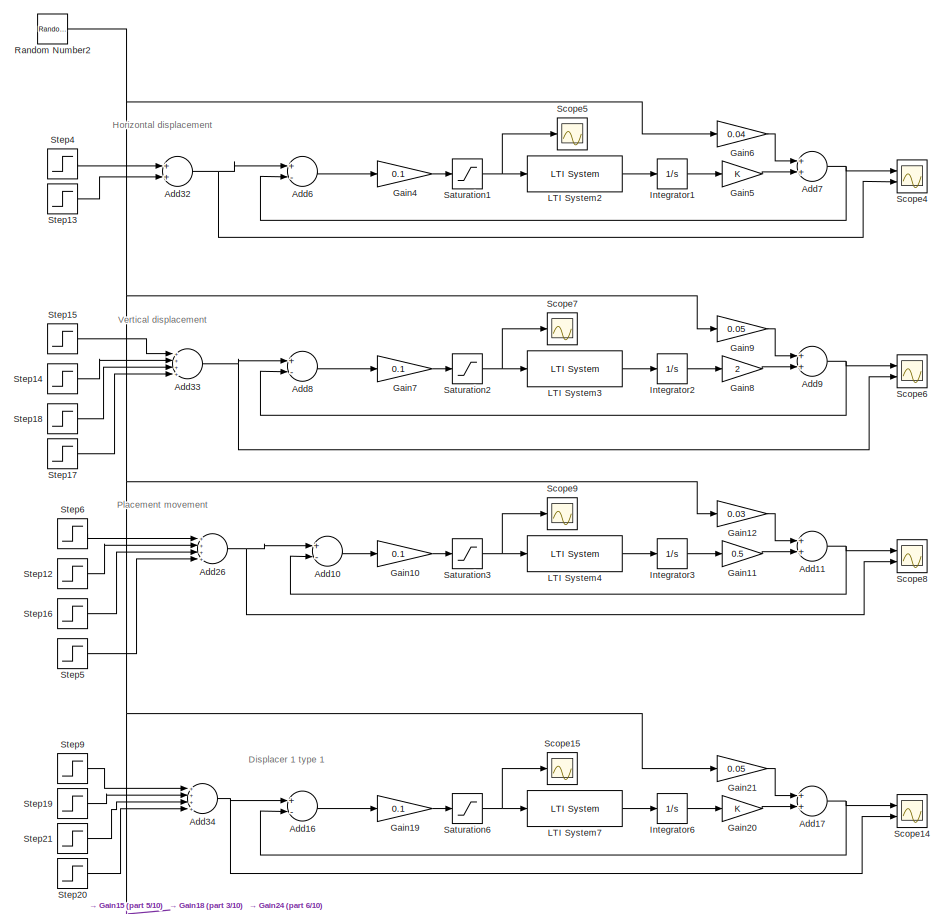
[diagram: root canvas - part 1/10, top left region]
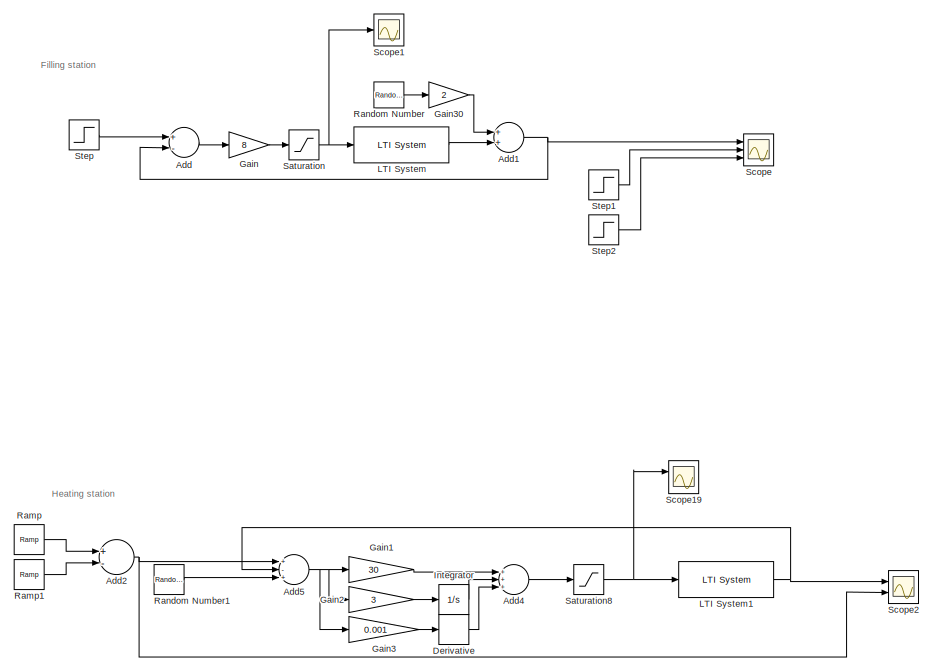
[diagram: root canvas - part 2/10, top center region]
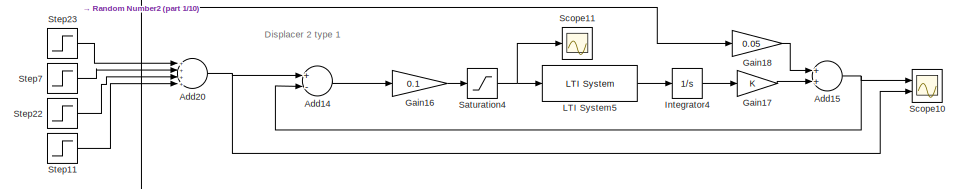
[diagram: root canvas - part 3/10, middle left region]
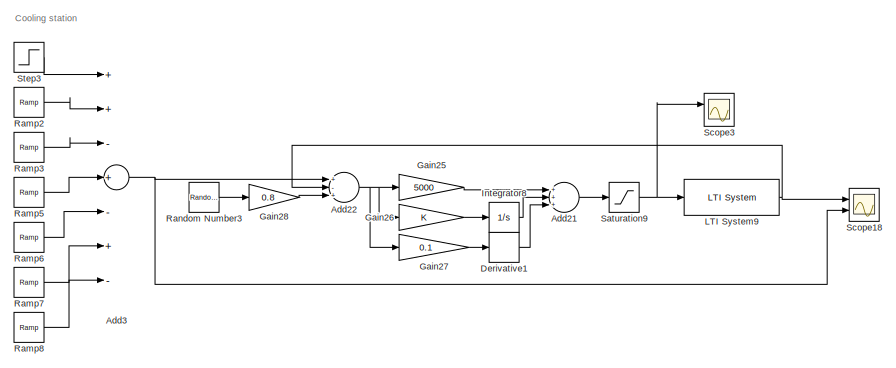
[diagram: root canvas - part 4/10, central region]
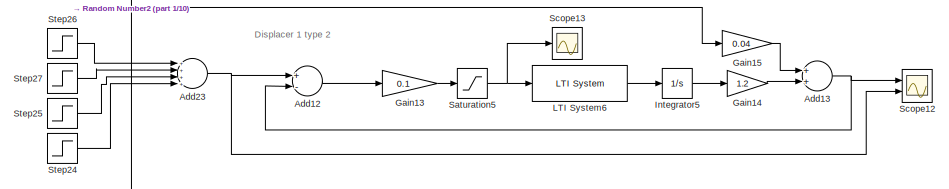
[diagram: root canvas - part 5/10, middle left region]
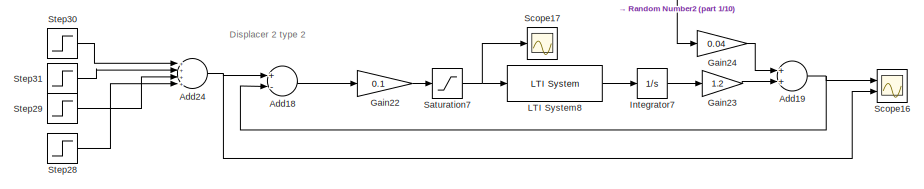
[diagram: root canvas - part 6/10, middle left region]
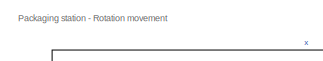
[diagram: root canvas - part 7/10, bottom center region]
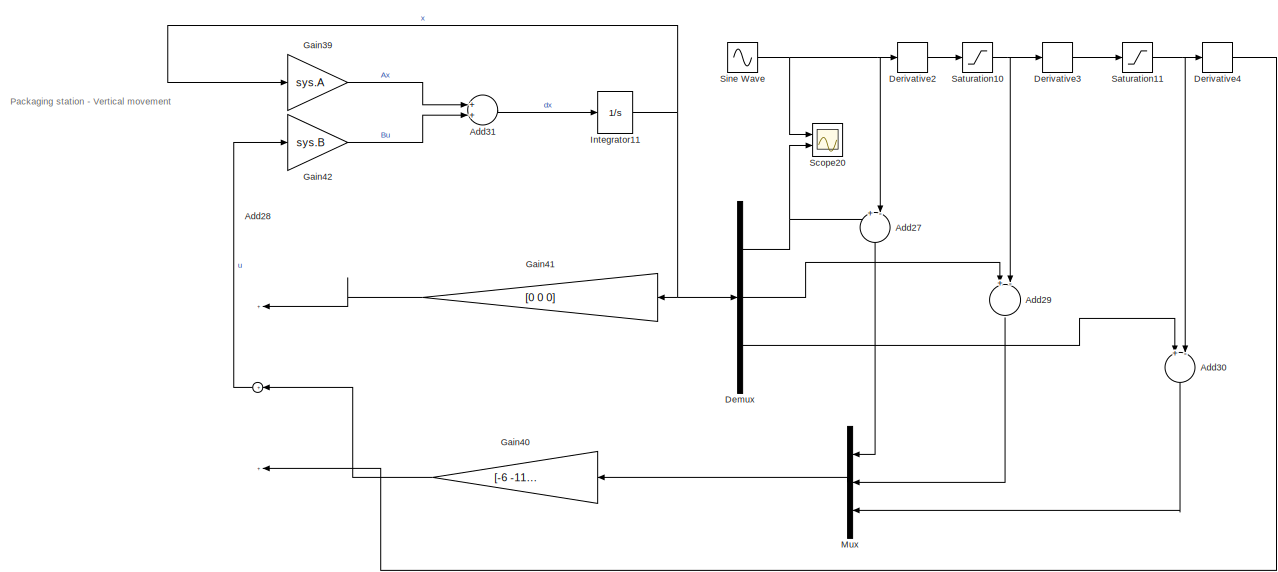
[diagram: root canvas - part 8/10, bottom left region]
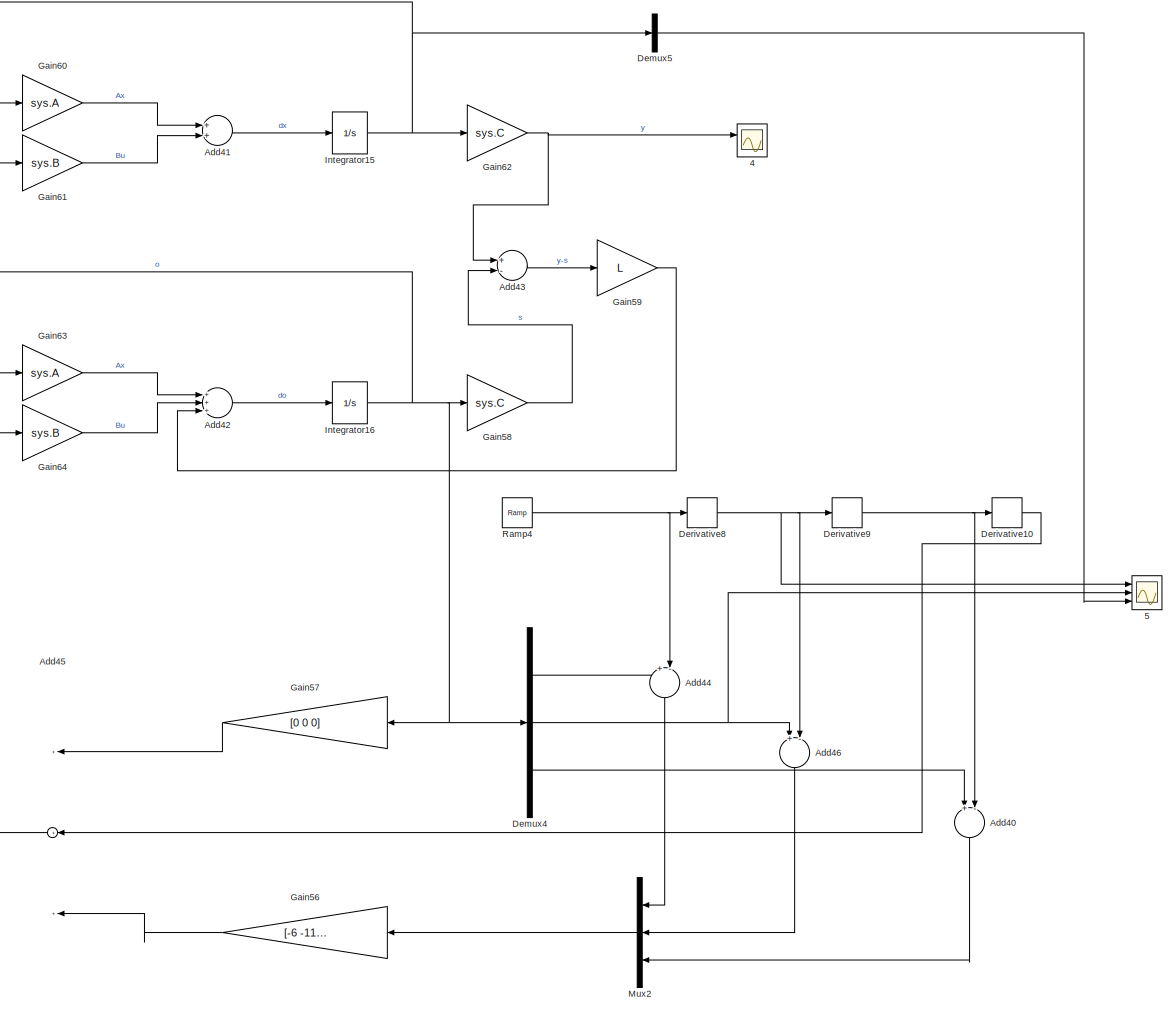
[diagram: root canvas - part 9/10, bottom right region]
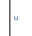
[diagram: root canvas - part 10/10, bottom center region]
MODEL slx_2edadf2fe691
KIND model
CONFIG AbsTol = auto
CONFIG EnableMultiTasking = off
CONFIG FixedStep = 0.001
CONFIG MaxStep = 0.001
CONFIG MinStep = auto
CONFIG RelTol = 1e-3
CONFIG SampleTimeConstraint = Unconstrained
CONFIG Solver = ode1
CONFIG SolverName = ode1
CONFIG StartTime = 0.0
CONFIG StopTime = 200
BLOCK [Scope]  4
  Commented = on
  Floating = off
  NumInputPorts = 2
  Ports = [2]
  ScopeSpecificationString = Simulink.scopes.TimeScopeBlockCfg('CurrentConfiguration', extmgr.ConfigurationSet(extmgr.Configuration('Core','General UI',true),extmgr.Configuration('Core','Source UI',true),extmgr.Configuration('Sources','WiredSimulink',true,'DataLoggingVariableName','ScopeData8'),extmgr.Configuration('Visuals','Time Domain',true,'SerializedDisplays',{struct('MinYLimReal','-36.63117','MaxYLimReal','149.8385','YL...<+1409ch>
BLOCK [Scope]  5
  Commented = on
  Floating = off
  NumInputPorts = 3
  Ports = [3]
  ScopeSpecificationString = Simulink.scopes.TimeScopeBlockCfg('CurrentConfiguration', extmgr.ConfigurationSet(extmgr.Configuration('Core','General UI',true),extmgr.Configuration('Core','Source UI',true),extmgr.Configuration('Sources','WiredSimulink',true,'DataLoggingVariableName','ScopeData9'),extmgr.Configuration('Visuals','Time Domain',true,'SerializedDisplays',{struct('MinYLimReal','-8.98815','MaxYLimReal','80.89339','YLa...<+1470ch>
BLOCK [Sum] Add
  Commented = on
  InputSameDT = off
  Inputs = +-
  OutDataTypeStr = Inherit: Inherit via internal rule
  Ports = [2, 1]
  SaturateOnIntegerOverflow = off
BLOCK [Sum] Add1
  Commented = on
  InputSameDT = off
  OutDataTypeStr = Inherit: Inherit via internal rule
  Ports = [2, 1]
  SaturateOnIntegerOverflow = off
BLOCK [Sum] Add10
  Commented = on
  InputSameDT = off
  Inputs = +-
  OutDataTypeStr = Inherit: Inherit via internal rule
  Ports = [2, 1]
  SaturateOnIntegerOverflow = off
BLOCK [Sum] Add11
  Commented = on
  InputSameDT = off
  OutDataTypeStr = Inherit: Inherit via internal rule
  Ports = [2, 1]
  SaturateOnIntegerOverflow = off
BLOCK [Sum] Add12
  Commented = on
  InputSameDT = off
  Inputs = +-
  OutDataTypeStr = Inherit: Inherit via internal rule
  Ports = [2, 1]
  SaturateOnIntegerOverflow = off
BLOCK [Sum] Add13
  Commented = on
  InputSameDT = off
  OutDataTypeStr = Inherit: Inherit via internal rule
  Ports = [2, 1]
  SaturateOnIntegerOverflow = off
BLOCK [Sum] Add14
  Commented = on
  InputSameDT = off
  Inputs = +-
  OutDataTypeStr = Inherit: Inherit via internal rule
  Ports = [2, 1]
  SaturateOnIntegerOverflow = off
BLOCK [Sum] Add15
  Commented = on
  InputSameDT = off
  OutDataTypeStr = Inherit: Inherit via internal rule
  Ports = [2, 1]
  SaturateOnIntegerOverflow = off
BLOCK [Sum] Add16
  Commented = on
  InputSameDT = off
  Inputs = +-
  OutDataTypeStr = Inherit: Inherit via internal rule
  Ports = [2, 1]
  SaturateOnIntegerOverflow = off
BLOCK [Sum] Add17
  Commented = on
  InputSameDT = off
  OutDataTypeStr = Inherit: Inherit via internal rule
  Ports = [2, 1]
  SaturateOnIntegerOverflow = off
BLOCK [Sum] Add18
  Commented = on
  InputSameDT = off
  Inputs = +-
  OutDataTypeStr = Inherit: Inherit via internal rule
  Ports = [2, 1]
  SaturateOnIntegerOverflow = off
BLOCK [Sum] Add19
  Commented = on
  InputSameDT = off
  OutDataTypeStr = Inherit: Inherit via internal rule
  Ports = [2, 1]
  SaturateOnIntegerOverflow = off
BLOCK [Sum] Add2
  Commented = on
  InputSameDT = off
  Inputs = +-
  OutDataTypeStr = Inherit: Inherit via internal rule
  Ports = [2, 1]
  SaturateOnIntegerOverflow = off
BLOCK [Sum] Add20
  Commented = on
  InputSameDT = off
  Inputs = ++++
  OutDataTypeStr = Inherit: Inherit via internal rule
  Ports = [4, 1]
  SaturateOnIntegerOverflow = off
BLOCK [Sum] Add21
  Commented = on
  InputSameDT = off
  Inputs = +++
  OutDataTypeStr = Inherit: Inherit via internal rule
  Ports = [3, 1]
  SaturateOnIntegerOverflow = off
BLOCK [Sum] Add22
  Commented = on
  InputSameDT = off
  Inputs = +-+
  OutDataTypeStr = Inherit: Inherit via internal rule
  Ports = [3, 1]
  SaturateOnIntegerOverflow = off
BLOCK [Sum] Add23
  Commented = on
  InputSameDT = off
  Inputs = ++++
  OutDataTypeStr = Inherit: Inherit via internal rule
  Ports = [4, 1]
  SaturateOnIntegerOverflow = off
BLOCK [Sum] Add24
  Commented = on
  InputSameDT = off
  Inputs = ++++
  OutDataTypeStr = Inherit: Inherit via internal rule
  Ports = [4, 1]
  SaturateOnIntegerOverflow = off
BLOCK [Sum] Add26
  Commented = on
  InputSameDT = off
  Inputs = ++++
  OutDataTypeStr = Inherit: Inherit via internal rule
  Ports = [4, 1]
  SaturateOnIntegerOverflow = off
BLOCK [Sum] Add27
  Commented = on
  InputSameDT = off
  Inputs = +-
  OutDataTypeStr = Inherit: Inherit via internal rule
  Ports = [2, 1]
  SaturateOnIntegerOverflow = off
BLOCK [Sum] Add28
  Commented = on
  InputSameDT = off
  Inputs = +++
  OutDataTypeStr = Inherit: Inherit via internal rule
  Ports = [3, 1]
  SaturateOnIntegerOverflow = off
BLOCK [Sum] Add29
  Commented = on
  InputSameDT = off
  Inputs = +-
  OutDataTypeStr = Inherit: Inherit via internal rule
  Ports = [2, 1]
  SaturateOnIntegerOverflow = off
BLOCK [Sum] Add3
  Commented = on
  InputSameDT = off
  Inputs = ++-+-+-
  OutDataTypeStr = Inherit: Inherit via internal rule
  Ports = [7, 1]
  SaturateOnIntegerOverflow = off
BLOCK [Sum] Add30
  Commented = on
  InputSameDT = off
  Inputs = +-
  OutDataTypeStr = Inherit: Inherit via internal rule
  Ports = [2, 1]
  SaturateOnIntegerOverflow = off
BLOCK [Sum] Add31
  Commented = on
  InputSameDT = off
  OutDataTypeStr = Inherit: Inherit via internal rule
  Ports = [2, 1]
  SaturateOnIntegerOverflow = off
BLOCK [Sum] Add32
  Commented = on
  InputSameDT = off
  OutDataTypeStr = Inherit: Inherit via internal rule
  Ports = [2, 1]
  SaturateOnIntegerOverflow = off
BLOCK [Sum] Add33
  Commented = on
  InputSameDT = off
  Inputs = ++++
  OutDataTypeStr = Inherit: Inherit via internal rule
  Ports = [4, 1]
  SaturateOnIntegerOverflow = off
BLOCK [Sum] Add34
  Commented = on
  InputSameDT = off
  Inputs = ++++
  OutDataTypeStr = Inherit: Inherit via internal rule
  Ports = [4, 1]
  SaturateOnIntegerOverflow = off
BLOCK [Sum] Add4
  Commented = on
  InputSameDT = off
  Inputs = +++
  OutDataTypeStr = Inherit: Inherit via internal rule
  Ports = [3, 1]
  SaturateOnIntegerOverflow = off
BLOCK [Sum] Add40
  Commented = on
  InputSameDT = off
  Inputs = +-
  OutDataTypeStr = Inherit: Inherit via internal rule
  Ports = [2, 1]
  SaturateOnIntegerOverflow = off
BLOCK [Sum] Add41
  Commented = on
  InputSameDT = off
  OutDataTypeStr = Inherit: Inherit via internal rule
  Ports = [2, 1]
  SaturateOnIntegerOverflow = off
BLOCK [Sum] Add42
  Commented = on
  InputSameDT = off
  Inputs = +++
  OutDataTypeStr = Inherit: Inherit via internal rule
  Ports = [3, 1]
  SaturateOnIntegerOverflow = off
BLOCK [Sum] Add43
  Commented = on
  InputSameDT = off
  Inputs = +-
  OutDataTypeStr = Inherit: Inherit via internal rule
  Ports = [2, 1]
  SaturateOnIntegerOverflow = off
BLOCK [Sum] Add44
  Commented = on
  InputSameDT = off
  Inputs = +-
  OutDataTypeStr = Inherit: Inherit via internal rule
  Ports = [2, 1]
  SaturateOnIntegerOverflow = off
BLOCK [Sum] Add45
  Commented = on
  InputSameDT = off
  Inputs = +++
  OutDataTypeStr = Inherit: Inherit via internal rule
  Ports = [3, 1]
  SaturateOnIntegerOverflow = off
BLOCK [Sum] Add46
  Commented = on
  InputSameDT = off
  Inputs = +-
  OutDataTypeStr = Inherit: Inherit via internal rule
  Ports = [2, 1]
  SaturateOnIntegerOverflow = off
BLOCK [Sum] Add5
  Commented = on
  InputSameDT = off
  Inputs = +-+
  OutDataTypeStr = Inherit: Inherit via internal rule
  Ports = [3, 1]
  SaturateOnIntegerOverflow = off
BLOCK [Sum] Add6
  Commented = on
  InputSameDT = off
  Inputs = +-
  OutDataTypeStr = Inherit: Inherit via internal rule
  Ports = [2, 1]
  SaturateOnIntegerOverflow = off
BLOCK [Sum] Add7
  Commented = on
  InputSameDT = off
  OutDataTypeStr = Inherit: Inherit via internal rule
  Ports = [2, 1]
  SaturateOnIntegerOverflow = off
BLOCK [Sum] Add8
  Commented = on
  InputSameDT = off
  Inputs = +-
  OutDataTypeStr = Inherit: Inherit via internal rule
  Ports = [2, 1]
  SaturateOnIntegerOverflow = off
BLOCK [Sum] Add9
  Commented = on
  InputSameDT = off
  OutDataTypeStr = Inherit: Inherit via internal rule
  Ports = [2, 1]
  SaturateOnIntegerOverflow = off
BLOCK [Demux] Demux
  Commented = on
  DisplayOption = bar
  Outputs = 3
  Ports = [1, 3]
BLOCK [Demux] Demux4
  Commented = on
  DisplayOption = bar
  Outputs = 3
  Ports = [1, 3]
BLOCK [Demux] Demux5
  Commented = on
  DisplayOption = bar
  Outputs = 3
  Ports = [1, 3]
BLOCK [Derivative] Derivative
  Commented = on
BLOCK [Derivative] Derivative1
  Commented = on
BLOCK [Derivative] Derivative10
  Commented = on
BLOCK [Derivative] Derivative2
  Commented = on
BLOCK [Derivative] Derivative3
  Commented = on
BLOCK [Derivative] Derivative4
  Commented = on
BLOCK [Derivative] Derivative8
  Commented = on
BLOCK [Derivative] Derivative9
  Commented = on
BLOCK [Gain] Gain
  Commented = on
  Gain = 8
  OutDataTypeStr = Inherit: Inherit via internal rule
  ParamDataTypeStr = Inherit: Inherit via internal rule
  SaturateOnIntegerOverflow = off
BLOCK [Gain] Gain1
  Commented = on
  Gain = 30
  OutDataTypeStr = Inherit: Inherit via internal rule
  ParamDataTypeStr = Inherit: Inherit via internal rule
  SaturateOnIntegerOverflow = off
BLOCK [Gain] Gain10
  Commented = on
  Gain = 0.1
  OutDataTypeStr = Inherit: Inherit via internal rule
  ParamDataTypeStr = Inherit: Inherit via internal rule
  SaturateOnIntegerOverflow = off
BLOCK [Gain] Gain11
  Commented = on
  Gain = 0.5
  OutDataTypeStr = Inherit: Inherit via internal rule
  ParamDataTypeStr = Inherit: Inherit via internal rule
  SaturateOnIntegerOverflow = off
BLOCK [Gain] Gain12
  Commented = on
  Gain = 0.03
  OutDataTypeStr = Inherit: Inherit via internal rule
  ParamDataTypeStr = Inherit: Inherit via internal rule
  SaturateOnIntegerOverflow = off
BLOCK [Gain] Gain13
  Commented = on
  Gain = 0.1
  OutDataTypeStr = Inherit: Inherit via internal rule
  ParamDataTypeStr = Inherit: Inherit via internal rule
  SaturateOnIntegerOverflow = off
BLOCK [Gain] Gain14
  Commented = on
  Gain = 1.2
  OutDataTypeStr = Inherit: Inherit via internal rule
  ParamDataTypeStr = Inherit: Inherit via internal rule
  SaturateOnIntegerOverflow = off
BLOCK [Gain] Gain15
  Commented = on
  Gain = 0.04
  OutDataTypeStr = Inherit: Inherit via internal rule
  ParamDataTypeStr = Inherit: Inherit via internal rule
  SaturateOnIntegerOverflow = off
BLOCK [Gain] Gain16
  Commented = on
  Gain = 0.1
  OutDataTypeStr = Inherit: Inherit via internal rule
  ParamDataTypeStr = Inherit: Inherit via internal rule
  SaturateOnIntegerOverflow = off
BLOCK [Gain] Gain17
  Commented = on
  OutDataTypeStr = Inherit: Inherit via internal rule
  ParamDataTypeStr = Inherit: Inherit via internal rule
  SaturateOnIntegerOverflow = off
BLOCK [Gain] Gain18
  Commented = on
  Gain = 0.05
  OutDataTypeStr = Inherit: Inherit via internal rule
  ParamDataTypeStr = Inherit: Inherit via internal rule
  SaturateOnIntegerOverflow = off
BLOCK [Gain] Gain19
  Commented = on
  Gain = 0.1
  OutDataTypeStr = Inherit: Inherit via internal rule
  ParamDataTypeStr = Inherit: Inherit via internal rule
  SaturateOnIntegerOverflow = off
BLOCK [Gain] Gain2
  Commented = on
  Gain = 3
  OutDataTypeStr = Inherit: Inherit via internal rule
  ParamDataTypeStr = Inherit: Inherit via internal rule
  SaturateOnIntegerOverflow = off
BLOCK [Gain] Gain20
  Commented = on
  OutDataTypeStr = Inherit: Inherit via internal rule
  ParamDataTypeStr = Inherit: Inherit via internal rule
  SaturateOnIntegerOverflow = off
BLOCK [Gain] Gain21
  Commented = on
  Gain = 0.05
  OutDataTypeStr = Inherit: Inherit via internal rule
  ParamDataTypeStr = Inherit: Inherit via internal rule
  SaturateOnIntegerOverflow = off
BLOCK [Gain] Gain22
  Commented = on
  Gain = 0.1
  OutDataTypeStr = Inherit: Inherit via internal rule
  ParamDataTypeStr = Inherit: Inherit via internal rule
  SaturateOnIntegerOverflow = off
BLOCK [Gain] Gain23
  Commented = on
  Gain = 1.2
  OutDataTypeStr = Inherit: Inherit via internal rule
  ParamDataTypeStr = Inherit: Inherit via internal rule
  SaturateOnIntegerOverflow = off
BLOCK [Gain] Gain24
  Commented = on
  Gain = 0.04
  OutDataTypeStr = Inherit: Inherit via internal rule
  ParamDataTypeStr = Inherit: Inherit via internal rule
  SaturateOnIntegerOverflow = off
BLOCK [Gain] Gain25
  Commented = on
  Gain = 5000
  OutDataTypeStr = Inherit: Inherit via internal rule
  ParamDataTypeStr = Inherit: Inherit via internal rule
  SaturateOnIntegerOverflow = off
BLOCK [Gain] Gain26
  Commented = on
  OutDataTypeStr = Inherit: Inherit via internal rule
  ParamDataTypeStr = Inherit: Inherit via internal rule
  SaturateOnIntegerOverflow = off
BLOCK [Gain] Gain27
  Commented = on
  Gain = 0.1
  OutDataTypeStr = Inherit: Inherit via internal rule
  ParamDataTypeStr = Inherit: Inherit via internal rule
  SaturateOnIntegerOverflow = off
BLOCK [Gain] Gain28
  Commented = on
  Gain = 0.8
  OutDataTypeStr = Inherit: Inherit via internal rule
  ParamDataTypeStr = Inherit: Inherit via internal rule
  SaturateOnIntegerOverflow = off
BLOCK [Gain] Gain3
  Commented = on
  Gain = 0.001
  OutDataTypeStr = Inherit: Inherit via internal rule
  ParamDataTypeStr = Inherit: Inherit via internal rule
  SaturateOnIntegerOverflow = off
BLOCK [Gain] Gain30
  Commented = on
  Gain = 2
  OutDataTypeStr = Inherit: Inherit via internal rule
  ParamDataTypeStr = Inherit: Inherit via internal rule
  SaturateOnIntegerOverflow = off
BLOCK [Gain] Gain39
  Commented = on
  Gain = sys.A
  Multiplication = Matrix(K*u)
  OutDataTypeStr = Inherit: Inherit via internal rule
  ParamDataTypeStr = Inherit: Inherit via internal rule
  SaturateOnIntegerOverflow = off
BLOCK [Gain] Gain4
  Commented = on
  Gain = 0.1
  OutDataTypeStr = Inherit: Inherit via internal rule
  ParamDataTypeStr = Inherit: Inherit via internal rule
  SaturateOnIntegerOverflow = off
BLOCK [Gain] Gain40
  Commented = on
  Gain = [-6 -11 -6]
  Multiplication = Matrix(K*u)
  OutDataTypeStr = Inherit: Inherit via internal rule
  ParamDataTypeStr = Inherit: Inherit via internal rule
  SaturateOnIntegerOverflow = off
BLOCK [Gain] Gain41
  Commented = on
  Gain = [0 0 0]
  Multiplication = Matrix(K*u)
  OutDataTypeStr = Inherit: Inherit via internal rule
  ParamDataTypeStr = Inherit: Inherit via internal rule
  SaturateOnIntegerOverflow = off
BLOCK [Gain] Gain42
  Commented = on
  Gain = sys.B
  Multiplication = Matrix(K*u)
  OutDataTypeStr = Inherit: Inherit via internal rule
  ParamDataTypeStr = Inherit: Inherit via internal rule
  SaturateOnIntegerOverflow = off
BLOCK [Gain] Gain5
  Commented = on
  OutDataTypeStr = Inherit: Inherit via internal rule
  ParamDataTypeStr = Inherit: Inherit via internal rule
  SaturateOnIntegerOverflow = off
BLOCK [Gain] Gain56
  Commented = on
  Gain = [-6 -11 -6]
  Multiplication = Matrix(K*u)
  OutDataTypeStr = Inherit: Inherit via internal rule
  ParamDataTypeStr = Inherit: Inherit via internal rule
  SaturateOnIntegerOverflow = off
BLOCK [Gain] Gain57
  Commented = on
  Gain = [0 0 0]
  Multiplication = Matrix(K*u)
  OutDataTypeStr = Inherit: Inherit via internal rule
  ParamDataTypeStr = Inherit: Inherit via internal rule
  SaturateOnIntegerOverflow = off
BLOCK [Gain] Gain58
  Commented = on
  Gain = sys.C
  Multiplication = Matrix(K*u)
  OutDataTypeStr = Inherit: Inherit via internal rule
  ParamDataTypeStr = Inherit: Inherit via internal rule
  SaturateOnIntegerOverflow = off
BLOCK [Gain] Gain59
  Commented = on
  Gain = L
  Multiplication = Matrix(K*u)
  OutDataTypeStr = Inherit: Inherit via internal rule
  ParamDataTypeStr = Inherit: Inherit via internal rule
  SaturateOnIntegerOverflow = off
BLOCK [Gain] Gain6
  Commented = on
  Gain = 0.04
  OutDataTypeStr = Inherit: Inherit via internal rule
  ParamDataTypeStr = Inherit: Inherit via internal rule
  SaturateOnIntegerOverflow = off
BLOCK [Gain] Gain60
  Commented = on
  Gain = sys.A
  Multiplication = Matrix(K*u)
  OutDataTypeStr = Inherit: Inherit via internal rule
  ParamDataTypeStr = Inherit: Inherit via internal rule
  SaturateOnIntegerOverflow = off
BLOCK [Gain] Gain61
  Commented = on
  Gain = sys.B
  Multiplication = Matrix(K*u)
  OutDataTypeStr = Inherit: Inherit via internal rule
  ParamDataTypeStr = Inherit: Inherit via internal rule
  SaturateOnIntegerOverflow = off
BLOCK [Gain] Gain62
  Commented = on
  Gain = sys.C
  Multiplication = Matrix(K*u)
  OutDataTypeStr = Inherit: Inherit via internal rule
  ParamDataTypeStr = Inherit: Inherit via internal rule
  SaturateOnIntegerOverflow = off
BLOCK [Gain] Gain63
  Commented = on
  Gain = sys.A
  Multiplication = Matrix(K*u)
  OutDataTypeStr = Inherit: Inherit via internal rule
  ParamDataTypeStr = Inherit: Inherit via internal rule
  SaturateOnIntegerOverflow = off
BLOCK [Gain] Gain64
  Commented = on
  Gain = sys.B
  Multiplication = Matrix(K*u)
  OutDataTypeStr = Inherit: Inherit via internal rule
  ParamDataTypeStr = Inherit: Inherit via internal rule
  SaturateOnIntegerOverflow = off
BLOCK [Gain] Gain7
  Commented = on
  Gain = 0.1
  OutDataTypeStr = Inherit: Inherit via internal rule
  ParamDataTypeStr = Inherit: Inherit via internal rule
  SaturateOnIntegerOverflow = off
BLOCK [Gain] Gain8
  Commented = on
  Gain = 2
  OutDataTypeStr = Inherit: Inherit via internal rule
  ParamDataTypeStr = Inherit: Inherit via internal rule
  SaturateOnIntegerOverflow = off
BLOCK [Gain] Gain9
  Commented = on
  Gain = 0.05
  OutDataTypeStr = Inherit: Inherit via internal rule
  ParamDataTypeStr = Inherit: Inherit via internal rule
  SaturateOnIntegerOverflow = off
BLOCK [Integrator] Integrator
  Commented = on
  Ports = [1, 1]
BLOCK [Integrator] Integrator1
  Commented = on
  Ports = [1, 1]
BLOCK [Integrator] Integrator11
  Commented = on
  InitialCondition = -10
  Ports = [1, 1]
BLOCK [Integrator] Integrator15
  Commented = on
  InitialCondition = [1 0.2 0.3]
  Ports = [1, 1]
BLOCK [Integrator] Integrator16
  Commented = on
  InitialCondition = [-1 0.2 0.5]
  Ports = [1, 1]
BLOCK [Integrator] Integrator2
  Commented = on
  Ports = [1, 1]
BLOCK [Integrator] Integrator3
  Commented = on
  Ports = [1, 1]
BLOCK [Integrator] Integrator4
  Commented = on
  Ports = [1, 1]
BLOCK [Integrator] Integrator5
  Commented = on
  Ports = [1, 1]
BLOCK [Integrator] Integrator6
  Commented = on
  Ports = [1, 1]
BLOCK [Integrator] Integrator7
  Commented = on
  Ports = [1, 1]
BLOCK [Integrator] Integrator8
  Commented = on
  Ports = [1, 1]
BLOCK [Reference] LTI System  REF=cstblocks/LTI System
  Commented = on
  Ports = [1, 1]
  SourceBlock = cstblocks/LTI System
  SourceProductBaseCode = CT
  SourceProductName = Control System Toolbox
  SourceType = LTI Block
BLOCK [Reference] LTI System1  REF=cstblocks/LTI System
  Commented = on
  Ports = [1, 1]
  SourceBlock = cstblocks/LTI System
  SourceProductBaseCode = CT
  SourceProductName = Control System Toolbox
  SourceType = LTI Block
BLOCK [Reference] LTI System2  REF=cstblocks/LTI System
  Commented = on
  Ports = [1, 1]
  SourceBlock = cstblocks/LTI System
  SourceProductBaseCode = CT
  SourceProductName = Control System Toolbox
  SourceType = LTI Block
BLOCK [Reference] LTI System3  REF=cstblocks/LTI System
  Commented = on
  Ports = [1, 1]
  SourceBlock = cstblocks/LTI System
  SourceProductBaseCode = CT
  SourceProductName = Control System Toolbox
  SourceType = LTI Block
BLOCK [Reference] LTI System4  REF=cstblocks/LTI System
  Commented = on
  Ports = [1, 1]
  SourceBlock = cstblocks/LTI System
  SourceProductBaseCode = CT
  SourceProductName = Control System Toolbox
  SourceType = LTI Block
BLOCK [Reference] LTI System5  REF=cstblocks/LTI System
  Commented = on
  Ports = [1, 1]
  SourceBlock = cstblocks/LTI System
  SourceProductBaseCode = CT
  SourceProductName = Control System Toolbox
  SourceType = LTI Block
BLOCK [Reference] LTI System6  REF=cstblocks/LTI System
  Commented = on
  Ports = [1, 1]
  SourceBlock = cstblocks/LTI System
  SourceProductBaseCode = CT
  SourceProductName = Control System Toolbox
  SourceType = LTI Block
BLOCK [Reference] LTI System7  REF=cstblocks/LTI System
  Commented = on
  Ports = [1, 1]
  SourceBlock = cstblocks/LTI System
  SourceProductBaseCode = CT
  SourceProductName = Control System Toolbox
  SourceType = LTI Block
BLOCK [Reference] LTI System8  REF=cstblocks/LTI System
  Commented = on
  Ports = [1, 1]
  SourceBlock = cstblocks/LTI System
  SourceProductBaseCode = CT
  SourceProductName = Control System Toolbox
  SourceType = LTI Block
BLOCK [Reference] LTI System9  REF=cstblocks/LTI System
  Commented = on
  Ports = [1, 1]
  SourceBlock = cstblocks/LTI System
  SourceProductBaseCode = CT
  SourceProductName = Control System Toolbox
  SourceType = LTI Block
BLOCK [Mux] Mux
  Commented = on
  DisplayOption = bar
  Inputs = 3
  Ports = [3, 1]
BLOCK [Mux] Mux2
  Commented = on
  DisplayOption = bar
  Inputs = 3
  Ports = [3, 1]
BLOCK [Reference] Ramp  REF=simulink/Sources/Ramp
  Commented = on
  Ports = [0, 1]
  SourceBlock = simulink/Sources/Ramp
  SourceProductBaseCode = SL
  SourceProductName = Simulink
  SourceType = Ramp
BLOCK [Reference] Ramp1  REF=simulink/Sources/Ramp
  Commented = on
  Ports = [0, 1]
  SourceBlock = simulink/Sources/Ramp
  SourceProductBaseCode = SL
  SourceProductName = Simulink
  SourceType = Ramp
BLOCK [Reference] Ramp2  REF=simulink/Sources/Ramp
  Commented = on
  Ports = [0, 1]
  SourceBlock = simulink/Sources/Ramp
  SourceProductBaseCode = SL
  SourceProductName = Simulink
  SourceType = Ramp
BLOCK [Reference] Ramp3  REF=simulink/Sources/Ramp
  Commented = on
  Ports = [0, 1]
  SourceBlock = simulink/Sources/Ramp
  SourceProductBaseCode = SL
  SourceProductName = Simulink
  SourceType = Ramp
BLOCK [Reference] Ramp4  REF=simulink/Sources/Ramp
  Commented = on
  Ports = [0, 1]
  SourceBlock = simulink/Sources/Ramp
  SourceProductBaseCode = SL
  SourceProductName = Simulink
  SourceType = Ramp
BLOCK [Reference] Ramp5  REF=simulink/Sources/Ramp
  Commented = on
  Ports = [0, 1]
  SourceBlock = simulink/Sources/Ramp
  SourceProductBaseCode = SL
  SourceProductName = Simulink
  SourceType = Ramp
BLOCK [Reference] Ramp6  REF=simulink/Sources/Ramp
  Commented = on
  Ports = [0, 1]
  SourceBlock = simulink/Sources/Ramp
  SourceProductBaseCode = SL
  SourceProductName = Simulink
  SourceType = Ramp
BLOCK [Reference] Ramp7  REF=simulink/Sources/Ramp
  Commented = on
  Ports = [0, 1]
  SourceBlock = simulink/Sources/Ramp
  SourceProductBaseCode = SL
  SourceProductName = Simulink
  SourceType = Ramp
BLOCK [Reference] Ramp8  REF=simulink/Sources/Ramp
  Commented = on
  Ports = [0, 1]
  SourceBlock = simulink/Sources/Ramp
  SourceProductBaseCode = SL
  SourceProductName = Simulink
  SourceType = Ramp
BLOCK [RandomNumber] Random Number
  Commented = on
  SampleTime = 0.001
BLOCK [RandomNumber] Random Number1
  Commented = on
  SampleTime = 0.001
BLOCK [RandomNumber] Random Number2
  SampleTime = 0.001
BLOCK [RandomNumber] Random Number3
  Commented = on
  SampleTime = 0.001
BLOCK [Saturate] Saturation
  Commented = on
  InputPortMap = u0
  Ports = [1, 1]
  UpperLimit = 250
BLOCK [Saturate] Saturation1
  Commented = on
  InputPortMap = u0
  LowerLimit = -0.9
  Ports = [1, 1]
  UpperLimit = 0.9
BLOCK [Saturate] Saturation10
  Commented = on
  InputPortMap = u0
  LowerLimit = -20
  Ports = [1, 1]
  UpperLimit = 20
BLOCK [Saturate] Saturation11
  Commented = on
  InputPortMap = u0
  LowerLimit = -20
  Ports = [1, 1]
  UpperLimit = 20
BLOCK [Saturate] Saturation2
  Commented = on
  InputPortMap = u0
  LowerLimit = -0.9
  Ports = [1, 1]
  UpperLimit = 0.9
BLOCK [Saturate] Saturation3
  Commented = on
  InputPortMap = u0
  LowerLimit = -0.9
  Ports = [1, 1]
  UpperLimit = 0.9
BLOCK [Saturate] Saturation4
  Commented = on
  InputPortMap = u0
  LowerLimit = -0.9
  Ports = [1, 1]
  UpperLimit = 0.9
BLOCK [Saturate] Saturation5
  Commented = on
  InputPortMap = u0
  LowerLimit = -0.9
  Ports = [1, 1]
  UpperLimit = 0.9
BLOCK [Saturate] Saturation6
  Commented = on
  InputPortMap = u0
  LowerLimit = -0.9
  Ports = [1, 1]
  UpperLimit = 0.9
BLOCK [Saturate] Saturation7
  Commented = on
  InputPortMap = u0
  LowerLimit = -0.9
  Ports = [1, 1]
  UpperLimit = 0.9
BLOCK [Saturate] Saturation8
  Commented = on
  InputPortMap = u0
  LowerLimit = 0
  Ports = [1, 1]
  UpperLimit = 1
BLOCK [Saturate] Saturation9
  Commented = on
  InputPortMap = u0
  LowerLimit = -1
  Ports = [1, 1]
  UpperLimit = 0
BLOCK [Scope] Scope
  Commented = on
  Floating = off
  NumInputPorts = 3
  Ports = [3]
  ScopeSpecificationString = Simulink.scopes.TimeScopeBlockCfg('CurrentConfiguration', extmgr.ConfigurationSet(extmgr.Configuration('Core','General UI',true),extmgr.Configuration('Core','Source UI',true),extmgr.Configuration('Sources','WiredSimulink',true),extmgr.Configuration('Visuals','Time Domain',true,'SerializedDisplays',{struct('MinYLimReal','-32.94215','MaxYLimReal','292.54913','YLabelReal','','MinYLimMag','0.00000','M...<+1381ch>
BLOCK [Scope] Scope1
  Commented = on
  Floating = off
  NumInputPorts = 1
  Ports = [1]
  ScopeSpecificationString = Simulink.scopes.TimeScopeBlockCfg('CurrentConfiguration', extmgr.ConfigurationSet(extmgr.Configuration('Core','General UI',true),extmgr.Configuration('Core','Source UI',true),extmgr.Configuration('Sources','WiredSimulink',true,'DataLoggingVariableName','ScopeData1'),extmgr.Configuration('Visuals','Time Domain',true,'SerializedDisplays',{struct('MinYLimReal','-31.8125','MaxYLimReal','281.3125','YLa...<+1404ch>
BLOCK [Scope] Scope10
  Commented = on
  Floating = off
  NumInputPorts = 2
  Ports = [2]
  ScopeSpecificationString = Simulink.scopes.TimeScopeBlockCfg('CurrentConfiguration', extmgr.ConfigurationSet(extmgr.Configuration('Core','General UI',true),extmgr.Configuration('Core','Source UI',true),extmgr.Configuration('Sources','WiredSimulink',true,'DataLoggingVariableName','ScopeData5'),extmgr.Configuration('Visuals','Time Domain',true,'SerializedDisplays',{struct('MinYLimReal','-4.0454','MaxYLimReal','33.93305','YLab...<+1448ch>
BLOCK [Scope] Scope11
  Commented = on
  Floating = off
  NumInputPorts = 1
  Ports = [1]
  ScopeSpecificationString = Simulink.scopes.TimeScopeBlockCfg('CurrentConfiguration', extmgr.ConfigurationSet(extmgr.Configuration('Core','General UI',true),extmgr.Configuration('Core','Source UI',true),extmgr.Configuration('Sources','WiredSimulink',true,'DataLoggingVariableName','ScopeData6'),extmgr.Configuration('Visuals','Time Domain',true,'SerializedDisplays',{struct('MinYLimReal','-1.125','MaxYLimReal','1.125','YLabelRe...<+1390ch>
BLOCK [Scope] Scope12
  Commented = on
  Floating = off
  NumInputPorts = 2
  Ports = [2]
  ScopeSpecificationString = Simulink.scopes.TimeScopeBlockCfg('CurrentConfiguration', extmgr.ConfigurationSet(extmgr.Configuration('Core','General UI',true),extmgr.Configuration('Core','Source UI',true),extmgr.Configuration('Sources','WiredSimulink',true,'DataLoggingVariableName','ScopeData7'),extmgr.Configuration('Visuals','Time Domain',true,'SerializedDisplays',{struct('MinYLimReal','-3.99221','MaxYLimReal','33.94097','YLa...<+1449ch>
BLOCK [Scope] Scope13
  Commented = on
  Floating = off
  NumInputPorts = 1
  Ports = [1]
  ScopeSpecificationString = Simulink.scopes.TimeScopeBlockCfg('CurrentConfiguration', extmgr.ConfigurationSet(extmgr.Configuration('Core','General UI',true),extmgr.Configuration('Core','Source UI',true),extmgr.Configuration('Sources','WiredSimulink',true,'DataLoggingVariableName','ScopeData8'),extmgr.Configuration('Visuals','Time Domain',true,'SerializedDisplays',{struct('MinYLimReal','-1.125','MaxYLimReal','1.125','YLabelRe...<+1390ch>
BLOCK [Scope] Scope14
  Commented = on
  Floating = off
  NumInputPorts = 2
  Ports = [2]
  ScopeSpecificationString = Simulink.scopes.TimeScopeBlockCfg('CurrentConfiguration', extmgr.ConfigurationSet(extmgr.Configuration('Core','General UI',true),extmgr.Configuration('Core','Source UI',true),extmgr.Configuration('Sources','WiredSimulink',true,'DataLoggingVariableName','ScopeData9'),extmgr.Configuration('Visuals','Time Domain',true,'SerializedDisplays',{struct('MinYLimReal','-3.99891','MaxYLimReal','33.96987','YLa...<+1451ch>
BLOCK [Scope] Scope15
  Commented = on
  Floating = off
  NumInputPorts = 1
  Ports = [1]
  ScopeSpecificationString = Simulink.scopes.TimeScopeBlockCfg('CurrentConfiguration', extmgr.ConfigurationSet(extmgr.Configuration('Core','General UI',true),extmgr.Configuration('Core','Source UI',true),extmgr.Configuration('Sources','WiredSimulink',true,'DataLoggingVariableName','ScopeData10'),extmgr.Configuration('Visuals','Time Domain',true,'SerializedDisplays',{struct('MinYLimReal','-1.01473','MaxYLimReal','0.13257','YLa...<+1392ch>
BLOCK [Scope] Scope16
  Commented = on
  Floating = off
  NumInputPorts = 2
  Ports = [2]
  ScopeSpecificationString = Simulink.scopes.TimeScopeBlockCfg('CurrentConfiguration', extmgr.ConfigurationSet(extmgr.Configuration('Core','General UI',true),extmgr.Configuration('Core','Source UI',true),extmgr.Configuration('Sources','WiredSimulink',true,'DataLoggingVariableName','ScopeData11'),extmgr.Configuration('Visuals','Time Domain',true,'SerializedDisplays',{struct('MinYLimReal','-3.99112','MaxYLimReal','33.93122','YL...<+1406ch>
BLOCK [Scope] Scope17
  Commented = on
  Floating = off
  NumInputPorts = 1
  Ports = [1]
  ScopeSpecificationString = Simulink.scopes.TimeScopeBlockCfg('CurrentConfiguration', extmgr.ConfigurationSet(extmgr.Configuration('Core','General UI',true),extmgr.Configuration('Core','Source UI',true),extmgr.Configuration('Sources','WiredSimulink',true,'DataLoggingVariableName','ScopeData12'),extmgr.Configuration('Visuals','Time Domain',true,'SerializedDisplays',{struct('MinYLimReal','-1.125','MaxYLimReal','1.125','YLabelR...<+1391ch>
BLOCK [Scope] Scope18
  Commented = on
  Floating = off
  NumInputPorts = 2
  Ports = [2]
  ScopeSpecificationString = Simulink.scopes.TimeScopeBlockCfg('CurrentConfiguration', extmgr.ConfigurationSet(extmgr.Configuration('Core','General UI',true),extmgr.Configuration('Core','Source UI',true),extmgr.Configuration('Sources','WiredSimulink',true,'DataLoggingVariableName','ScopeData13'),extmgr.Configuration('Visuals','Time Domain',true,'SerializedDisplays',{struct('MinYLimReal','-213.75','MaxYLimReal','23.75','YLabel...<+1446ch>
BLOCK [Scope] Scope19
  Commented = on
  Floating = off
  NumInputPorts = 2
  Ports = [2]
  ScopeSpecificationString = Simulink.scopes.TimeScopeBlockCfg('CurrentConfiguration', extmgr.ConfigurationSet(extmgr.Configuration('Core','General UI',true),extmgr.Configuration('Core','Source UI',true),extmgr.Configuration('Sources','WiredSimulink',true,'DataLoggingVariableName','ScopeData1'),extmgr.Configuration('Visuals','Time Domain',true,'SerializedDisplays',{struct('MinYLimReal','-0.125','MaxYLimReal','1.125','YLabelRe...<+1785ch>
BLOCK [Scope] Scope2
  Commented = on
  Floating = off
  NumInputPorts = 2
  Ports = [2]
  ScopeSpecificationString = Simulink.scopes.TimeScopeBlockCfg('CurrentConfiguration', extmgr.ConfigurationSet(extmgr.Configuration('Core','General UI',true),extmgr.Configuration('Core','Source UI',true),extmgr.Configuration('Sources','WiredSimulink',true,'DataLoggingVariableName','ScopeData2'),extmgr.Configuration('Visuals','Time Domain',true,'SerializedDisplays',{struct('MinYLimReal','-25.0876','MaxYLimReal','225.78839','YL...<+1769ch>
BLOCK [Scope] Scope20
  Commented = on
  Floating = off
  NumInputPorts = 2
  Ports = [2]
  ScopeSpecificationString = Simulink.scopes.TimeScopeBlockCfg('CurrentConfiguration', extmgr.ConfigurationSet(extmgr.Configuration('Core','General UI',true),extmgr.Configuration('Core','Source UI',true),extmgr.Configuration('Sources','WiredSimulink',true,'DataLoggingVariableName','ScopeData3'),extmgr.Configuration('Visuals','Time Domain',true,'SerializedDisplays',{struct('MinYLimReal','-22.01287','MaxYLimReal','13.89716','YL...<+1438ch>
BLOCK [Scope] Scope3
  Commented = on
  Floating = off
  NumInputPorts = 2
  Ports = [2]
  ScopeSpecificationString = Simulink.scopes.TimeScopeBlockCfg('CurrentConfiguration', extmgr.ConfigurationSet(extmgr.Configuration('Core','General UI',true),extmgr.Configuration('Core','Source UI',true),extmgr.Configuration('Sources','WiredSimulink',true,'DataLoggingVariableName','ScopeData14'),extmgr.Configuration('Visuals','Time Domain',true,'SerializedDisplays',{struct('MinYLimReal','-0.03549','MaxYLimReal','1.02598','YLa...<+1788ch>
BLOCK [Scope] Scope4
  Commented = on
  Floating = off
  NumInputPorts = 2
  Ports = [2]
  ScopeSpecificationString = Simulink.scopes.TimeScopeBlockCfg('CurrentConfiguration', extmgr.ConfigurationSet(extmgr.Configuration('Core','General UI',true),extmgr.Configuration('Core','Source UI',true),extmgr.Configuration('Sources','WiredSimulink',true,'DataLoggingVariableName','ScopeData1'),extmgr.Configuration('Visuals','Time Domain',true,'SerializedDisplays',{struct('MinYLimReal','-6.48492','MaxYLimReal','56.46183','YLa...<+1430ch>
BLOCK [Scope] Scope5
  Commented = on
  Floating = off
  NumInputPorts = 1
  Ports = [1]
  ScopeSpecificationString = Simulink.scopes.TimeScopeBlockCfg('CurrentConfiguration', extmgr.ConfigurationSet(extmgr.Configuration('Core','General UI',true),extmgr.Configuration('Core','Source UI',true),extmgr.Configuration('Sources','WiredSimulink',true,'DataLoggingVariableName','ScopeData2'),extmgr.Configuration('Visuals','Time Domain',true,'SerializedDisplays',{struct('MinYLimReal','-1.125','MaxYLimReal','1.125','YLabelRe...<+1413ch>
BLOCK [Scope] Scope6
  Commented = on
  Floating = off
  NumInputPorts = 2
  Ports = [2]
  ScopeSpecificationString = Simulink.scopes.TimeScopeBlockCfg('CurrentConfiguration', extmgr.ConfigurationSet(extmgr.Configuration('Core','General UI',true),extmgr.Configuration('Core','Source UI',true),extmgr.Configuration('Sources','WiredSimulink',true,'DataLoggingVariableName','ScopeData1'),extmgr.Configuration('Visuals','Time Domain',true,'SerializedDisplays',{struct('MinYLimReal','-42.49431','MaxYLimReal','4.96535','YLa...<+1449ch>
BLOCK [Scope] Scope7
  Commented = on
  Floating = off
  NumInputPorts = 1
  Ports = [1]
  ScopeSpecificationString = Simulink.scopes.TimeScopeBlockCfg('CurrentConfiguration', extmgr.ConfigurationSet(extmgr.Configuration('Core','General UI',true),extmgr.Configuration('Core','Source UI',true),extmgr.Configuration('Sources','WiredSimulink',true,'DataLoggingVariableName','ScopeData2'),extmgr.Configuration('Visuals','Time Domain',true,'SerializedDisplays',{struct('MinYLimReal','-1.01473','MaxYLimReal','0.13257','YLab...<+1428ch>
BLOCK [Scope] Scope8
  Commented = on
  Floating = off
  NumInputPorts = 2
  Ports = [2]
  ScopeSpecificationString = Simulink.scopes.TimeScopeBlockCfg('CurrentConfiguration', extmgr.ConfigurationSet(extmgr.Configuration('Core','General UI',true),extmgr.Configuration('Core','Source UI',true),extmgr.Configuration('Sources','WiredSimulink',true,'DataLoggingVariableName','ScopeData3'),extmgr.Configuration('Visuals','Time Domain',true,'SerializedDisplays',{struct('MinYLimReal','-20.1113','MaxYLimReal','30.11341','YLa...<+1450ch>
BLOCK [Scope] Scope9
  Commented = on
  Floating = off
  NumInputPorts = 1
  Ports = [1]
  ScopeSpecificationString = Simulink.scopes.TimeScopeBlockCfg('CurrentConfiguration', extmgr.ConfigurationSet(extmgr.Configuration('Core','General UI',true),extmgr.Configuration('Core','Source UI',true),extmgr.Configuration('Sources','WiredSimulink',true,'DataLoggingVariableName','ScopeData4'),extmgr.Configuration('Visuals','Time Domain',true,'SerializedDisplays',{struct('MinYLimReal','-1.01473','MaxYLimReal','0.13257','YLab...<+1428ch>
BLOCK [Sin] Sine Wave
  Amplitude = 10
  Commented = on
  Frequency = 2*pi/60
  Ports = [0, 1]
  SampleTime = 0
BLOCK [Step] Step
  After = 250
  Commented = on
  SampleTime = 0
  Time = 0
BLOCK [Step] Step1
  After = 245
  Commented = on
  SampleTime = 0
  Time = 0
BLOCK [Step] Step11
  After = -30
  Commented = on
  SampleTime = 0
  Time = 30+2+30+delaystation2+30+2
BLOCK [Step] Step12
  After = 15
  Commented = on
  SampleTime = 0
  Time = delaypos+50
BLOCK [Step] Step13
  After = -xdisp
  Commented = on
  SampleTime = 0
  Time = delaypos+100
BLOCK [Step] Step14
  After = -ydisp
  Commented = on
  SampleTime = 0
  Time = delaypos+100
BLOCK [Step] Step15
  After = ydisp
  Commented = on
  SampleTime = 0
  Time = 0
BLOCK [Step] Step16
  After = 25
  Commented = on
  SampleTime = 0
  Time = 2*delaypos+100
BLOCK [Step] Step17
  Commented = on
  SampleTime = 0
  Time = 2*delaypos+100+60+10
BLOCK [Step] Step18
  After = -1
  Commented = on
  SampleTime = 0
  Time = 2*delaypos+100+60
BLOCK [Step] Step19
  After = -30
  Commented = on
  SampleTime = 0
  Time = 30+2
BLOCK [Step] Step2
  After = 260
  Commented = on
  SampleTime = 0
  Time = 0
BLOCK [Step] Step20
  After = -30
  Commented = on
  SampleTime = 0
  Time = 30+2+30+delaystation1+30+2
BLOCK [Step] Step21
  After = 30
  Commented = on
  SampleTime = 0
  Time = 30+2+30+delaystation1
BLOCK [Step] Step22
  After = 30
  Commented = on
  SampleTime = 0
  Time = 30+2+30+delaystation2
BLOCK [Step] Step23
  After = 30
  Commented = on
  SampleTime = 0
  Time = 0
BLOCK [Step] Step24
  After = -30
  Commented = on
  SampleTime = 0
  Time = 30+2+30+delaystation3+30+2
BLOCK [Step] Step25
  After = 30
  Commented = on
  SampleTime = 0
  Time = 30+2+30+delaystation3
BLOCK [Step] Step26
  After = 30
  Commented = on
  SampleTime = 0
  Time = 0
BLOCK [Step] Step27
  After = -30
  Commented = on
  SampleTime = 0
  Time = 30+2
BLOCK [Step] Step28
  After = -30
  Commented = on
  SampleTime = 0
  Time = 30+2+30+delaystation4+30+2
BLOCK [Step] Step29
  After = 30
  Commented = on
  SampleTime = 0
  Time = 30+2+30+delaystation4
BLOCK [Step] Step3
  After = 0
  Commented = on
  SampleTime = 0
  Time = 0
BLOCK [Step] Step30
  After = 30
  Commented = on
  SampleTime = 0
  Time = 0
BLOCK [Step] Step31
  After = -30
  Commented = on
  SampleTime = 0
  Time = 30+2
BLOCK [Step] Step4
  After = xdisp
  Commented = on
  SampleTime = 0
  Time = 0
BLOCK [Step] Step5
  After = -25
  Commented = on
  SampleTime = 0
  Time = 2*delaypos+100+60+20
BLOCK [Step] Step6
  After = -15
  Commented = on
  SampleTime = 0
  Time = delaypos
BLOCK [Step] Step7
  After = -30
  Commented = on
  SampleTime = 0
  Time = 30+2
BLOCK [Step] Step9
  After = 30
  Commented = on
  SampleTime = 0
  Time = 0
ANNOTATION (root): Cooling station
ANNOTATION (root): Displacer 1 type 1
ANNOTATION (root): Displacer 1 type 2
ANNOTATION (root): Displacer 2 type 1
ANNOTATION (root): Displacer 2 type 2
ANNOTATION (root): Filling station
ANNOTATION (root): Heating station
ANNOTATION (root): Horizontal displacement
ANNOTATION (root): Packaging station - Rotation movement
ANNOTATION (root): Packaging station - Vertical movement
ANNOTATION (root): Placement movement
ANNOTATION (root): Vertical displacement
LINE Add10:1 -> Gain10:1
NET Add11:1 -> Add10:2, Scope8:1
LINE Add12:1 -> Gain13:1
NET Add13:1 -> Add12:2, Scope12:1
LINE Add14:1 -> Gain16:1
NET Add15:1 -> Add14:2, Scope10:1
LINE Add16:1 -> Gain19:1
NET Add17:1 -> Add16:2, Scope14:1
LINE Add18:1 -> Gain22:1
NET Add19:1 -> Add18:2, Scope16:1
NET Add1:1 -> Add:2, Scope:1
NET Add20:1 -> Add14:1, Scope10:2
LINE Add21:1 -> Saturation9:1
NET Add22:1 -> Gain25:1, Gain26:1, Gain27:1
NET Add23:1 -> Add12:1, Scope12:2
NET Add24:1 -> Add18:1, Scope16:2
NET Add26:1 -> Add10:1, Scope8:2
LINE Add27:1 -> Mux:1
LINE Add28:1 -> Gain42:1
LINE Add29:1 -> Mux:2
NET Add2:1 -> Add5:1, Scope2:2
LINE Add30:1 -> Mux:3
LINE Add31:1 -> Integrator11:1
NET Add32:1 -> Add6:1, Scope4:2
NET Add33:1 -> Add8:1, Scope6:2
NET Add34:1 -> Add16:1, Scope14:2
NET Add3:1 -> Add22:1, Scope18:2
LINE Add40:1 -> Mux2:3
LINE Add41:1 -> Integrator15:1
LINE Add42:1 -> Integrator16:1
LINE Add43:1 -> Gain59:1
LINE Add44:1 -> Mux2:1
NET Add45:1 -> Gain61:1, Gain64:1
LINE Add46:1 -> Mux2:2
LINE Add4:1 -> Saturation8:1
NET Add5:1 -> Gain1:1, Gain2:1, Gain3:1
LINE Add6:1 -> Gain4:1
NET Add7:1 -> Add6:2, Scope4:1
LINE Add8:1 -> Gain7:1
NET Add9:1 -> Add8:2, Scope6:1
LINE Add:1 -> Gain:1
LINE Demux4:1 -> Add44:1
NET Demux4:2 ->  5:2, Add46:1
LINE Demux4:3 -> Add40:1
LINE Demux5:2 ->  5:3
NET Demux:1 -> Add27:1, Scope20:2
LINE Demux:2 -> Add29:1
LINE Demux:3 -> Add30:1
LINE Derivative10:1 -> Add45:2
LINE Derivative1:1 -> Add21:3
LINE Derivative2:1 -> Saturation10:1
LINE Derivative3:1 -> Saturation11:1
LINE Derivative4:1 -> Add28:3
NET Derivative8:1 ->  5:1, Add46:2, Derivative9:1
NET Derivative9:1 -> Add40:2, Derivative10:1
LINE Derivative:1 -> Add4:3
LINE Gain10:1 -> Saturation3:1
LINE Gain11:1 -> Add11:2
LINE Gain12:1 -> Add11:1
LINE Gain13:1 -> Saturation5:1
LINE Gain14:1 -> Add13:2
LINE Gain15:1 -> Add13:1
LINE Gain16:1 -> Saturation4:1
LINE Gain17:1 -> Add15:2
LINE Gain18:1 -> Add15:1
LINE Gain19:1 -> Saturation6:1
LINE Gain1:1 -> Add4:1
LINE Gain20:1 -> Add17:2
LINE Gain21:1 -> Add17:1
LINE Gain22:1 -> Saturation7:1
LINE Gain23:1 -> Add19:2
LINE Gain24:1 -> Add19:1
LINE Gain25:1 -> Add21:1
LINE Gain26:1 -> Integrator8:1
LINE Gain27:1 -> Derivative1:1
LINE Gain28:1 -> Add22:3
LINE Gain2:1 -> Integrator:1
LINE Gain30:1 -> Add1:1
LINE Gain39:1 -> Add31:1
LINE Gain3:1 -> Derivative:1
LINE Gain40:1 -> Add28:2
LINE Gain41:1 -> Add28:1
LINE Gain42:1 -> Add31:2
LINE Gain4:1 -> Saturation1:1
LINE Gain56:1 -> Add45:3
LINE Gain57:1 -> Add45:1
LINE Gain58:1 -> Add43:2
LINE Gain59:1 -> Add42:3
LINE Gain5:1 -> Add7:2
LINE Gain60:1 -> Add41:1
LINE Gain61:1 -> Add41:2
NET Gain62:1 ->  4:1, Add43:1
LINE Gain63:1 -> Add42:1
LINE Gain64:1 -> Add42:2
LINE Gain6:1 -> Add7:1
LINE Gain7:1 -> Saturation2:1
LINE Gain8:1 -> Add9:2
LINE Gain9:1 -> Add9:1
LINE Gain:1 -> Saturation:1
NET Integrator11:1 -> Demux:1, Gain39:1, Gain41:1
NET Integrator15:1 -> Demux5:1, Gain60:1, Gain62:1
NET Integrator16:1 -> Demux4:1, Gain57:1, Gain58:1, Gain63:1
LINE Integrator1:1 -> Gain5:1
LINE Integrator2:1 -> Gain8:1
LINE Integrator3:1 -> Gain11:1
LINE Integrator4:1 -> Gain17:1
LINE Integrator5:1 -> Gain14:1
LINE Integrator6:1 -> Gain20:1
LINE Integrator7:1 -> Gain23:1
LINE Integrator8:1 -> Add21:2
LINE Integrator:1 -> Add4:2
NET LTI System1:1 -> Add5:2, Scope2:1
LINE LTI System2:1 -> Integrator1:1
LINE LTI System3:1 -> Integrator2:1
LINE LTI System4:1 -> Integrator3:1
LINE LTI System5:1 -> Integrator4:1
LINE LTI System6:1 -> Integrator5:1
LINE LTI System7:1 -> Integrator6:1
LINE LTI System8:1 -> Integrator7:1
NET LTI System9:1 -> Add22:2, Scope18:1
LINE LTI System:1 -> Add1:2
LINE Mux2:1 -> Gain56:1
LINE Mux:1 -> Gain40:1
LINE Ramp1:1 -> Add2:2
LINE Ramp2:1 -> Add3:2
LINE Ramp3:1 -> Add3:3
NET Ramp4:1 -> Add44:2, Derivative8:1
LINE Ramp5:1 -> Add3:4
LINE Ramp6:1 -> Add3:5
LINE Ramp7:1 -> Add3:6
LINE Ramp8:1 -> Add3:7
LINE Ramp:1 -> Add2:1
LINE Random Number1:1 -> Add5:3
NET Random Number2:1 -> Gain12:1, Gain15:1, Gain18:1, Gain21:1, Gain24:1, Gain6:1, Gain9:1
LINE Random Number3:1 -> Gain28:1
LINE Random Number:1 -> Gain30:1
NET Saturation10:1 -> Add29:2, Derivative3:1
NET Saturation11:1 -> Add30:2, Derivative4:1
NET Saturation1:1 -> LTI System2:1, Scope5:1
NET Saturation2:1 -> LTI System3:1, Scope7:1
NET Saturation3:1 -> LTI System4:1, Scope9:1
NET Saturation4:1 -> LTI System5:1, Scope11:1
NET Saturation5:1 -> LTI System6:1, Scope13:1
NET Saturation6:1 -> LTI System7:1, Scope15:1
NET Saturation7:1 -> LTI System8:1, Scope17:1
NET Saturation8:1 -> LTI System1:1, Scope19:1
NET Saturation9:1 -> LTI System9:1, Scope3:1
NET Saturation:1 -> LTI System:1, Scope1:1
NET Sine Wave:1 -> Add27:2, Derivative2:1, Scope20:1
LINE Step11:1 -> Add20:4
LINE Step12:1 -> Add26:2
LINE Step13:1 -> Add32:2
LINE Step14:1 -> Add33:2
LINE Step15:1 -> Add33:1
LINE Step16:1 -> Add26:3
LINE Step17:1 -> Add33:4
LINE Step18:1 -> Add33:3
LINE Step19:1 -> Add34:2
LINE Step1:1 -> Scope:2
LINE Step20:1 -> Add34:4
LINE Step21:1 -> Add34:3
LINE Step22:1 -> Add20:3
LINE Step23:1 -> Add20:1
LINE Step24:1 -> Add23:4
LINE Step25:1 -> Add23:3
LINE Step26:1 -> Add23:1
LINE Step27:1 -> Add23:2
LINE Step28:1 -> Add24:4
LINE Step29:1 -> Add24:3
LINE Step2:1 -> Scope:3
LINE Step30:1 -> Add24:1
LINE Step31:1 -> Add24:2
LINE Step3:1 -> Add3:1
LINE Step4:1 -> Add32:1
LINE Step5:1 -> Add26:4
LINE Step6:1 -> Add26:1
LINE Step7:1 -> Add20:2
LINE Step9:1 -> Add34:1
LINE Step:1 -> Add:1
note: NET lines group one-source signal fan-out (src -> all destinations, sorted); 1:1 wires keep LINE
